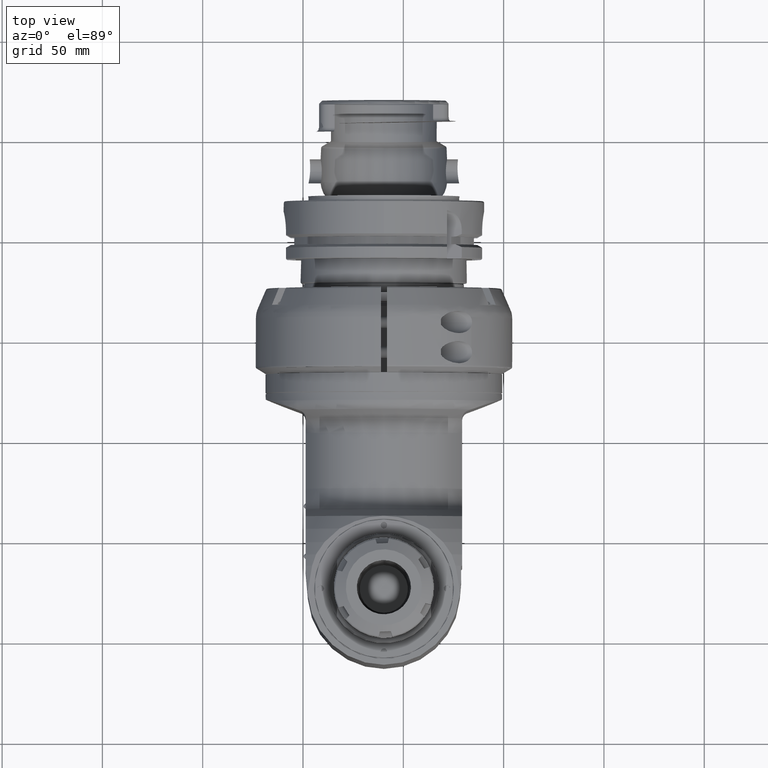
[diagram: clean part render]
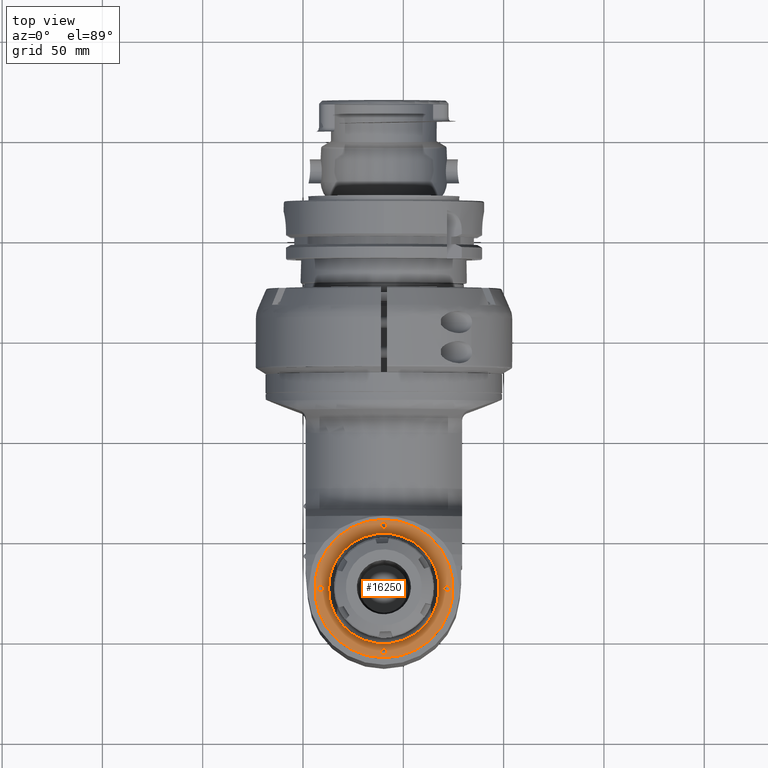
[diagram: same view with one face highlighted and labeled with its STEP entity id]
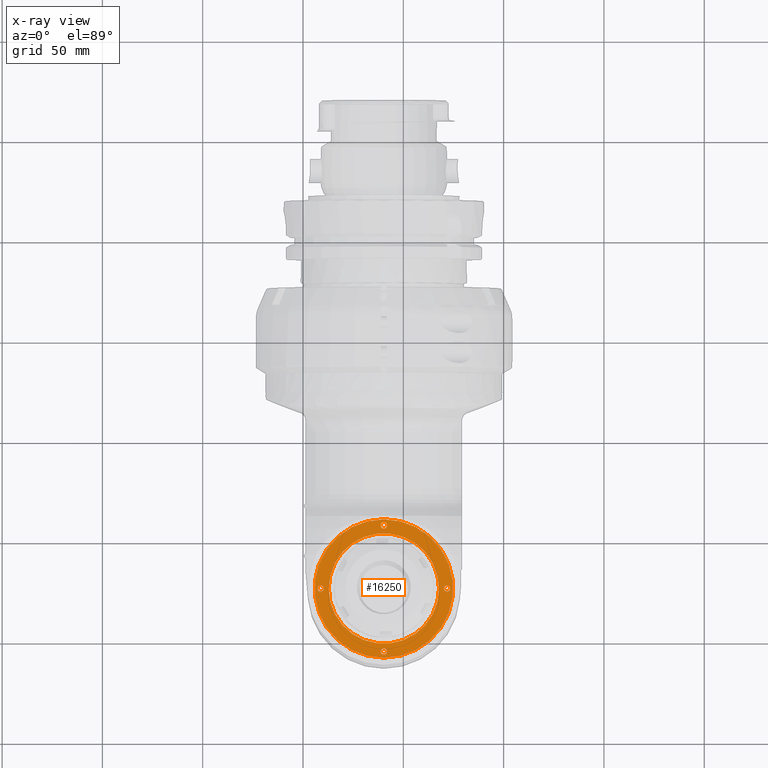
[diagram: x-ray of the same camera — body ghosted, the highlighted face saturated]
A machine part, top view. The second image highlights one B-rep face of the part: STEP entity #16250.
The next image is the same camera in x-ray: the body ghosted, the highlighted face saturated — about 0% of this face is hidden behind the body in this view.
In plain terms, the highlighted planar face has unit normal (-0, 0, -1).
Its self-contained STEP definition (entity closure, byte-faithful):
#335=FACE_BOUND('',#5463,.T.);
#336=FACE_BOUND('',#5464,.T.);
#337=FACE_BOUND('',#5465,.T.);
#338=FACE_BOUND('',#5466,.T.);
#339=FACE_BOUND('',#5467,.T.);
#562=PLANE('',#17477);
#3655=CIRCLE('',#17476,34.5);
#3656=CIRCLE('',#17478,27.5);
#3657=CIRCLE('',#17479,1.6);
#3658=CIRCLE('',#17480,1.6);
#3659=CIRCLE('',#17481,1.6);
#3660=CIRCLE('',#17482,1.6);
#4509=FACE_OUTER_BOUND('',#5462,.T.);
#5462=EDGE_LOOP('',(#12075));
#5463=EDGE_LOOP('',(#12076));
#5464=EDGE_LOOP('',(#12077));
#5465=EDGE_LOOP('',(#12078));
#5466=EDGE_LOOP('',(#12079));
#5467=EDGE_LOOP('',(#12080));
#6974=VERTEX_POINT('',#25817);
#6975=VERTEX_POINT('',#25821);
#6976=VERTEX_POINT('',#25823);
#6977=VERTEX_POINT('',#25825);
#6978=VERTEX_POINT('',#25827);
#6979=VERTEX_POINT('',#25829);
#8922=EDGE_CURVE('',#6974,#6974,#3655,.T.);
#8923=EDGE_CURVE('',#6975,#6975,#3656,.T.);
#8924=EDGE_CURVE('',#6976,#6976,#3657,.T.);
#8925=EDGE_CURVE('',#6977,#6977,#3658,.T.);
#8926=EDGE_CURVE('',#6978,#6978,#3659,.T.);
#8927=EDGE_CURVE('',#6979,#6979,#3660,.T.);
#12075=ORIENTED_EDGE('',*,*,#8922,.T.);
#12076=ORIENTED_EDGE('',*,*,#8923,.T.);
#12077=ORIENTED_EDGE('',*,*,#8924,.T.);
#12078=ORIENTED_EDGE('',*,*,#8925,.T.);
#12079=ORIENTED_EDGE('',*,*,#8926,.T.);
#12080=ORIENTED_EDGE('',*,*,#8927,.T.);
#16250=ADVANCED_FACE('',(#4509,#335,#336,#337,#338,#339),#562,.F.);
#17476=AXIS2_PLACEMENT_3D('',#25819,#20039,#20040);
#17477=AXIS2_PLACEMENT_3D('',#25820,#20041,#20042);
#17478=AXIS2_PLACEMENT_3D('',#25822,#20043,#20044);
#17479=AXIS2_PLACEMENT_3D('',#25824,#20045,#20046);
#17480=AXIS2_PLACEMENT_3D('',#25826,#20047,#20048);
#17481=AXIS2_PLACEMENT_3D('',#25828,#20049,#20050);
#17482=AXIS2_PLACEMENT_3D('',#25830,#20051,#20052);
#20039=DIRECTION('center_axis',(0.,-1.,0.));
#20040=DIRECTION('ref_axis',(1.,0.,0.));
#20041=DIRECTION('center_axis',(0.,1.,0.));
#20042=DIRECTION('ref_axis',(1.,0.,0.));
#20043=DIRECTION('center_axis',(0.,1.,0.));
#20044=DIRECTION('ref_axis',(0.,0.,1.));
#20045=DIRECTION('center_axis',(0.,1.,0.));
#20046=DIRECTION('ref_axis',(0.,0.,1.));
#20047=DIRECTION('center_axis',(0.,1.,0.));
#20048=DIRECTION('ref_axis',(6.217248937901E-14,0.,1.));
#20049=DIRECTION('center_axis',(0.,1.,0.));
#20050=DIRECTION('ref_axis',(0.,0.,1.));
#20051=DIRECTION('center_axis',(0.,1.,0.));
#20052=DIRECTION('ref_axis',(0.,0.,1.));
#25817=CARTESIAN_POINT('',(75.5,-59.,0.));
#25819=CARTESIAN_POINT('Origin',(110.,-59.,0.));
#25820=CARTESIAN_POINT('Origin',(127.5,-59.,0.));
#25821=CARTESIAN_POINT('',(110.,-59.,-27.5));
#25822=CARTESIAN_POINT('Origin',(110.,-59.,0.));
#25823=CARTESIAN_POINT('',(110.,-59.,-33.1));
#25824=CARTESIAN_POINT('Origin',(110.,-59.,-31.5));
#25825=CARTESIAN_POINT('',(78.5,-59.,-1.6));
#25826=CARTESIAN_POINT('Origin',(78.5,-59.,0.));
#25827=CARTESIAN_POINT('',(110.,-59.,29.9));
#25828=CARTESIAN_POINT('Origin',(110.,-59.,31.5));
#25829=CARTESIAN_POINT('',(141.5,-59.,-1.6));
#25830=CARTESIAN_POINT('Origin',(141.5,-59.,0.));